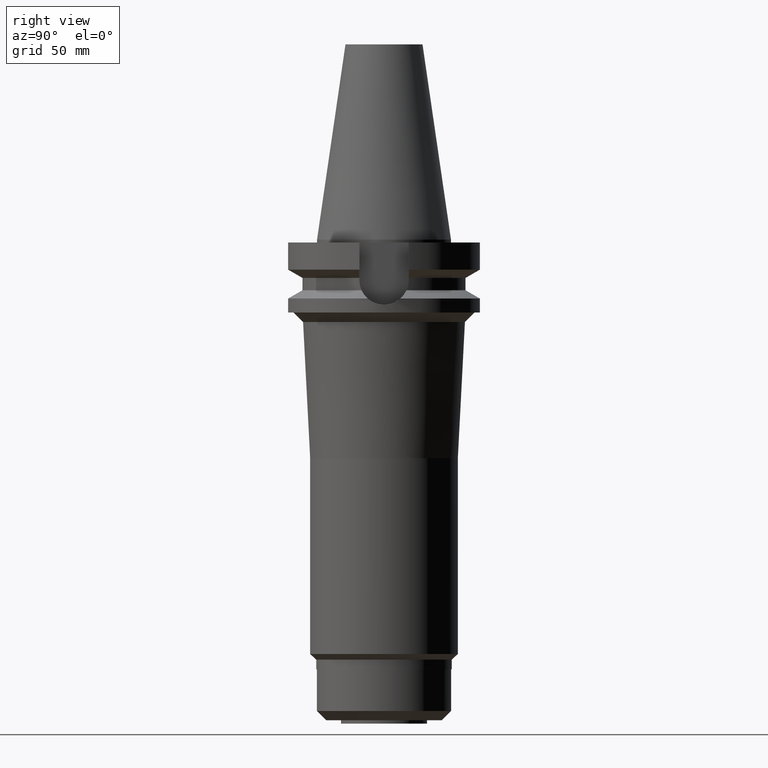
[diagram: clean part render]
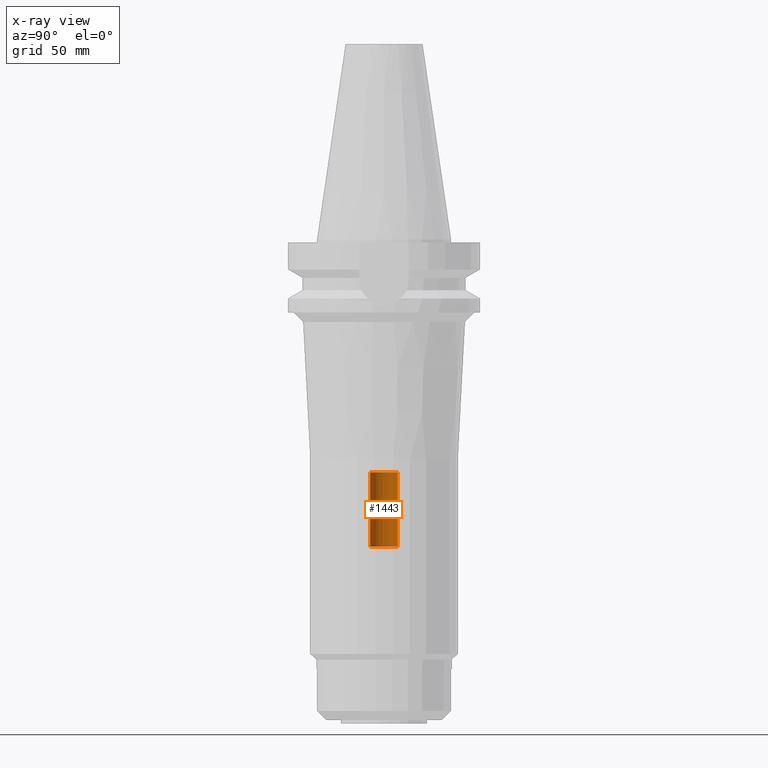
[diagram: x-ray — body ghosted, one internal face saturated and labeled with its STEP entity id]
A machine part, right view, then the same camera in x-ray: the body is ghosted and one INTERNAL B-rep face — a face not visible from any outside direction — is saturated and labeled: STEP entity #1443.
In plain terms, the highlighted cylindrical surface (edge-blend (fillet) strip) has radius 7.25 mm, axis along (0, 0, -1).
Its self-contained STEP definition (entity closure, byte-faithful):
#132=CARTESIAN_POINT('',(0.E0,2.688222188808E-14,-1.214E2));
#133=DIRECTION('',(0.E0,0.E0,1.E0));
#134=DIRECTION('',(0.E0,1.E0,0.E0));
#135=AXIS2_PLACEMENT_3D('',#132,#133,#134);
#140=DIRECTION('',(0.E0,0.E0,1.E0));
#141=VECTOR('',#140,3.86E1);
#142=CARTESIAN_POINT('',(0.E0,7.25E0,-1.6E2));
#143=LINE('',#142,#141);
#147=DIRECTION('',(0.E0,0.E0,1.E0));
#148=VECTOR('',#147,3.86E1);
#149=CARTESIAN_POINT('',(0.E0,-7.25E0,-1.6E2));
#150=LINE('',#149,#148);
#170=CARTESIAN_POINT('',(0.E0,2.688222188808E-14,-1.6E2));
#171=DIRECTION('',(0.E0,0.E0,-1.E0));
#172=DIRECTION('',(0.E0,-1.E0,0.E0));
#173=AXIS2_PLACEMENT_3D('',#170,#171,#172);
#1145=CARTESIAN_POINT('',(0.E0,-7.25E0,-1.214E2));
#1146=CARTESIAN_POINT('',(0.E0,7.25E0,-1.214E2));
#1147=VERTEX_POINT('',#1145);
#1148=VERTEX_POINT('',#1146);
#1149=CARTESIAN_POINT('',(0.E0,7.25E0,-1.6E2));
#1150=VERTEX_POINT('',#1149);
#1151=CARTESIAN_POINT('',(0.E0,-7.25E0,-1.6E2));
#1152=VERTEX_POINT('',#1151);
#1431=CARTESIAN_POINT('',(0.E0,2.688222188808E-14,1.1951E2));
#1432=DIRECTION('',(0.E0,0.E0,-1.E0));
#1433=DIRECTION('',(0.E0,-1.E0,0.E0));
#1434=AXIS2_PLACEMENT_3D('',#1431,#1432,#1433);
#1435=CYLINDRICAL_SURFACE('',#1434,7.25E0);
#1436=ORIENTED_EDGE('',*,*,#1421,.F.);
#1438=ORIENTED_EDGE('',*,*,#1437,.F.);
#1439=ORIENTED_EDGE('',*,*,#1424,.T.);
#1440=ORIENTED_EDGE('',*,*,#1411,.F.);
#1441=EDGE_LOOP('',(#1436,#1438,#1439,#1440));
#1442=FACE_OUTER_BOUND('',#1441,.F.);
#136=CIRCLE('',#135,7.25E0);
#174=CIRCLE('',#173,7.25E0);
#1411=EDGE_CURVE('',#1148,#1147,#136,.T.);
#1421=EDGE_CURVE('',#1150,#1148,#143,.T.);
#1424=EDGE_CURVE('',#1152,#1147,#150,.T.);
#1437=EDGE_CURVE('',#1152,#1150,#174,.T.);
#1443=ADVANCED_FACE('',(#1442),#1435,.F.);